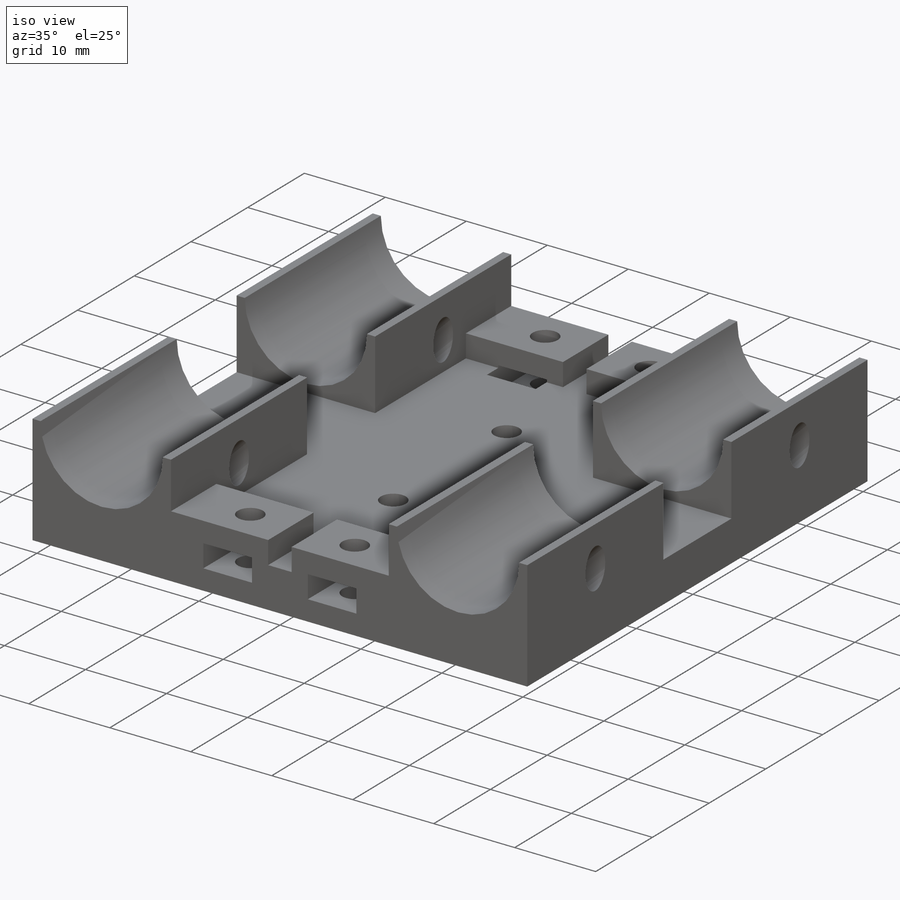
[diagram: iso view]
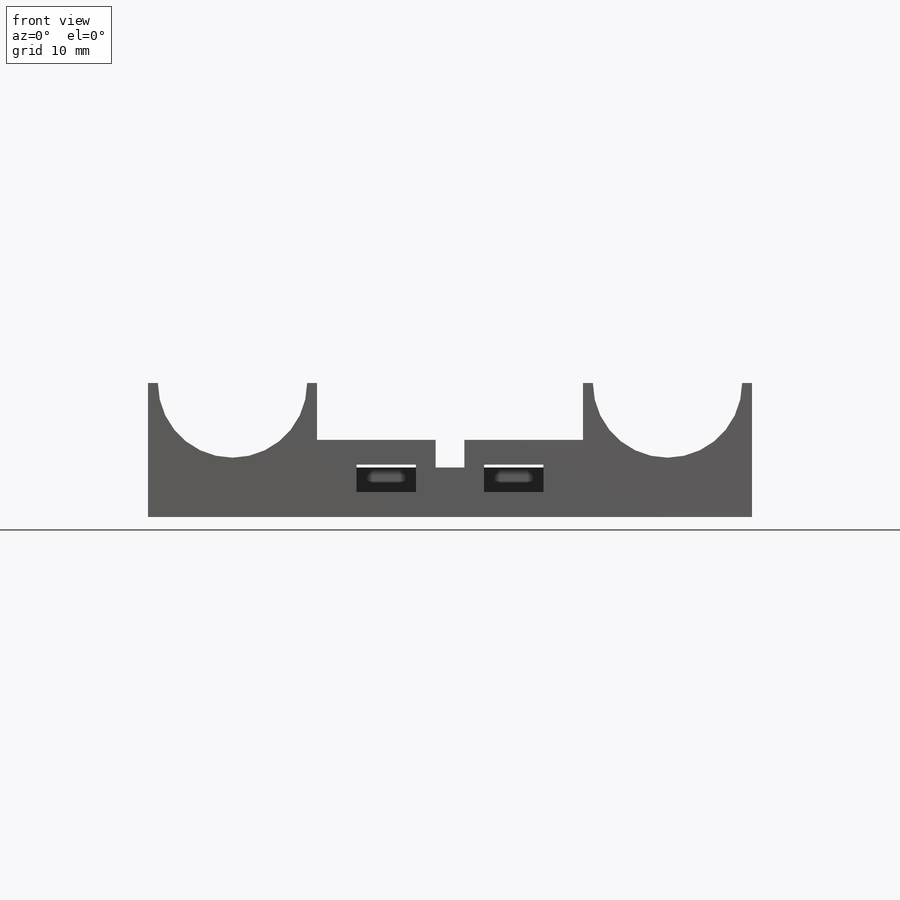
[diagram: front view]
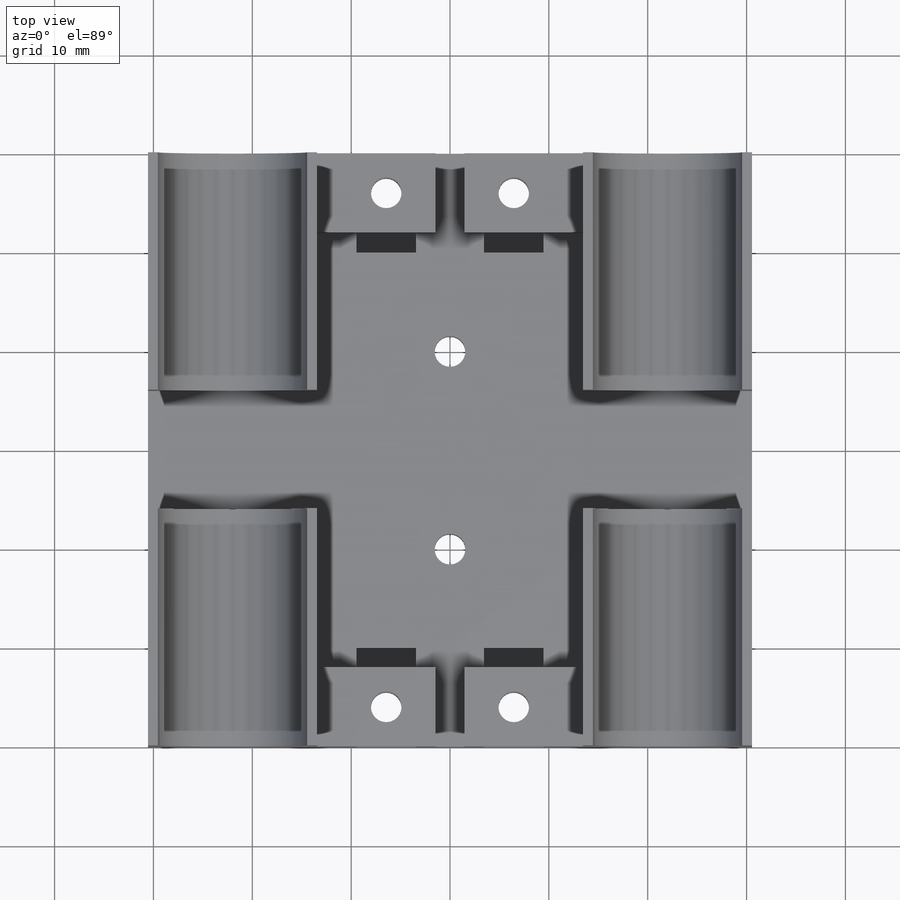
[diagram: top view]
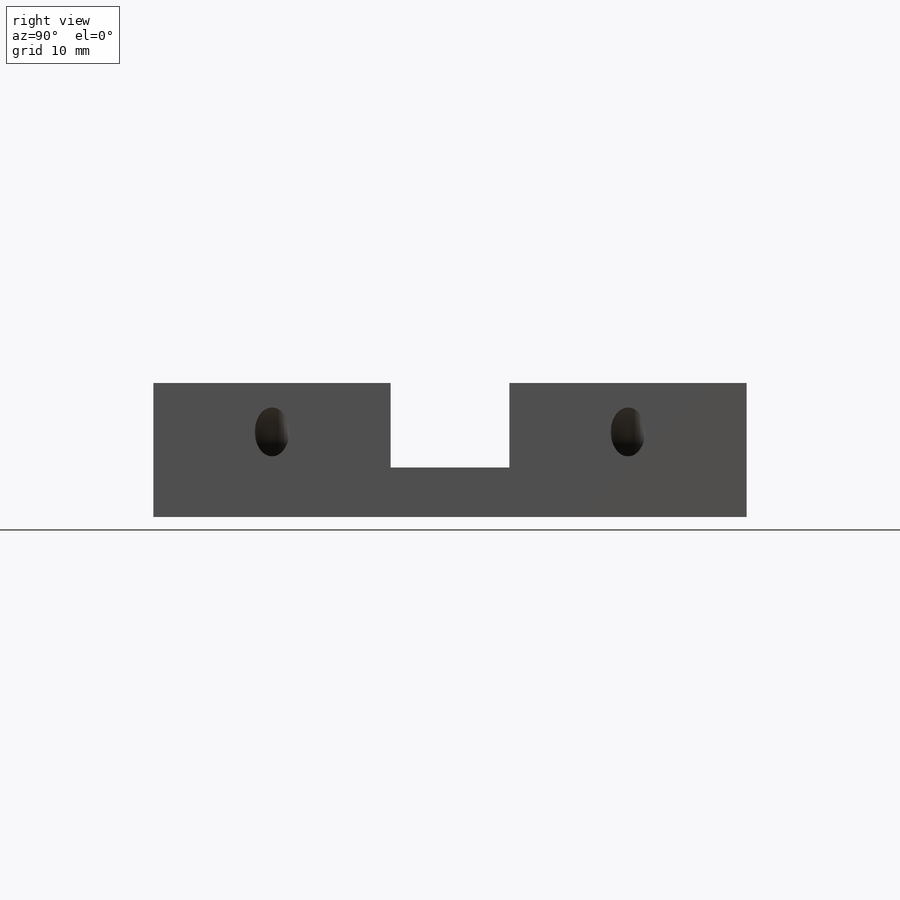
[diagram: right view]
SOLIDWORKS PART (.sldprt)
format: sldprt  version: not decoded by parser v0  size: 399,872 bytes
history: native  units: mm
features: sketch x7, mirror x7, cut_extrude x4, extrude x3, plane x2, material x1 (+13 scaffold rows collapsed)
feature tree (37):
  scaffold x13  (default folders/planes/origin — collapsed)
  material  "Material <not specified>"
  sketch  "Sketch1"  dims[D1=60.0mm D2=61.1mm D3=30.55mm D4=30.0mm]
  extrude  "Boss-Extrude1"  Depth=5mm
  sketch  "Sketch2"  dims[D3=15.1mm D1=17.1mm D2=8.55mm D4=22.0mm]
  extrude  "Boss-Extrude2"  Depth=24mm
  mirror  "Mirror1"
  mirror  "Mirror2"
  plane  "Plane1"
  plane  "Plane2"
  sketch  "Sketch3"  dims[D1=3.5mm D2=12.0mm D3=3.5mm]
  cut_extrude  "Cut-Extrude1"  Depth=10mm
  mirror  "Mirror3"
  mirror  "Mirror4"
  mirror  "Mirror5"
  sketch  "Sketch9"  dims[D1=2.8mm D2=6.0mm D3=2.0mm D4=4.0mm D5=2.5mm D6=2.5mm]
  extrude  "Boss-Extrude4"  Depth=8mm
  cut_extrude  "Cut-Extrude7"  [1 undecoded]
  sketch  "Sketch9<3>"  dims[D1=10.0mm]
  mirror  "Mirror6"
  mirror  "Mirror7"
  sketch  "Sketch10"  dims[c1.D1=3.1mm c1.D2=4.0mm c1.D3=5.0mm c1.D4=5.0mm c1.D5=4.0mm c1.D6=4.0mm c1.D7=5.0mm c1.D8=5.0mm c1.D9=4.0mm c2.D4=4.0mm c2.D5=5.0mm c2.D6=5.0mm c2.D7=4.0mm c2.D9=4.0mm c2.D8=5.0mm]
  cut_extrude  "Cut-Extrude8"  Depth=10mm
  sketch  "Sketch11"  dims[D1=3.1mm D2=20.0mm D3=10.0mm]
  cut_extrude  "Cut-Extrude9"  Depth=10mm
decode coverage: 13 of 21 modeling features carry decoded parameters
note: 1 parameter value undecoded
note: suppression state not decoded; provenance and decode notes live in map.json
